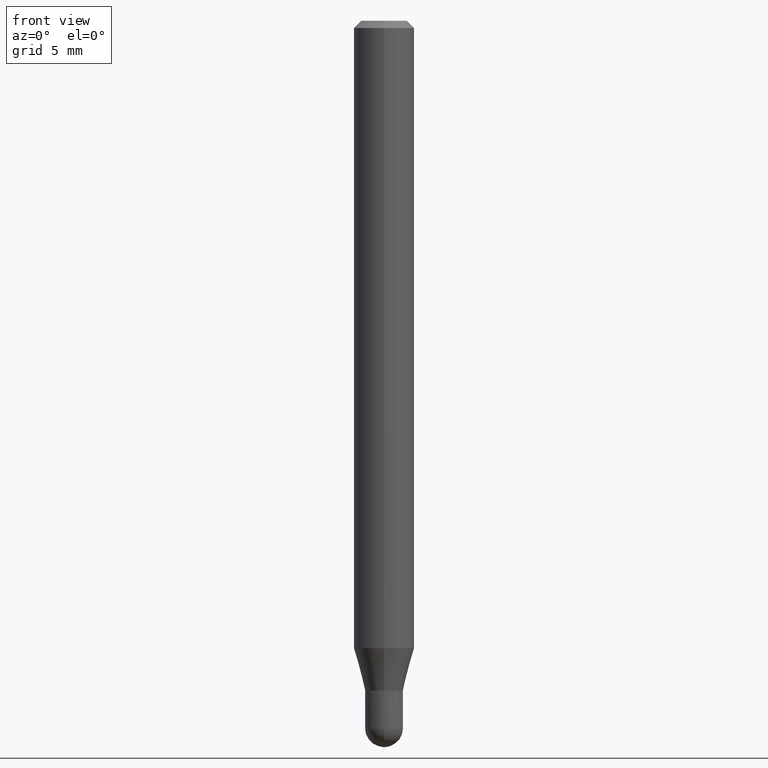
[diagram: clean part render]
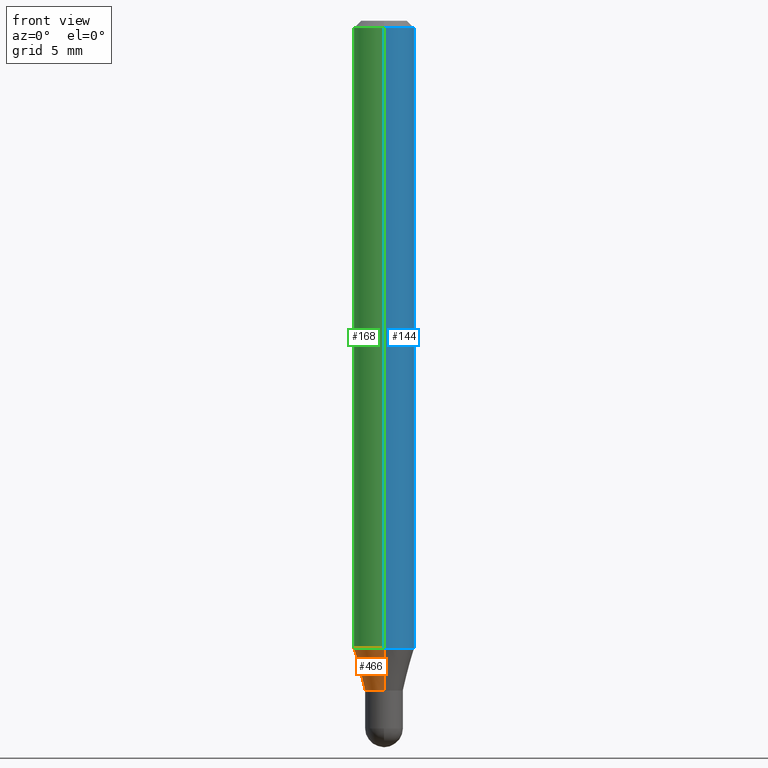
[diagram: same view with three faces highlighted in distinct colors, each labeled with its STEP entity id]
A machine part, front view with three faces highlighted in distinct colors.
Their STEP definitions:

[orange] entity #466 — the highlighted conical surface has half-angle 15 deg.
#1 = VERTEX_POINT ( 'NONE', #492 ) ;
#2 = FACE_OUTER_BOUND ( 'NONE', #42, .T. ) ;
#19 = CARTESIAN_POINT ( 'NONE',  ( 4.440892098500939734E-16, 0.06249999999999544115, -1.295296806022135261 ) ) ;
#24 = LINE ( 'NONE', #188, #328 ) ;
#42 = EDGE_LOOP ( 'NONE', ( #355, #118, #478, #99 ) ) ;
#44 = VERTEX_POINT ( 'NONE', #19 ) ;
#46 = AXIS2_PLACEMENT_3D ( 'NONE', #310, #63, #299 ) ;
#63 = DIRECTION ( 'NONE',  ( -2.445438854622252826E-29, 3.491524231185932081E-15, 1.000000000000000000 ) ) ;
#83 = DIRECTION ( 'NONE',  ( -1.807323732225382599E-15, -0.2588190451025256800, 0.9659258262890669799 ) ) ;
#99 = ORIENTED_EDGE ( 'NONE', *, *, #277, .F. ) ;
#118 = ORIENTED_EDGE ( 'NONE', *, *, #364, .T. ) ;
#120 = CARTESIAN_POINT ( 'NONE',  ( 3.382041935942576446E-29, -4.828778011730144635E-15, -1.383000000000000007 ) ) ;
#150 = AXIS2_PLACEMENT_3D ( 'NONE', #242, #401, #451 ) ;
#174 = VECTOR ( 'NONE', #83, 39.37007874015748143 ) ;
#176 = VERTEX_POINT ( 'NONE', #427 ) ;
#188 = CARTESIAN_POINT ( 'NONE',  ( 2.771116669464742257E-16, 0.03899999999999536476, -1.383000000000000007 ) ) ;
#194 = CARTESIAN_POINT ( 'NONE',  ( 3.606004383982843954E-16, 0.03899999999999536476, -1.383000000000000007 ) ) ;
#197 = LINE ( 'NONE', #399, #174 ) ;
#224 = AXIS2_PLACEMENT_3D ( 'NONE', #120, #329, #473 ) ;
#242 = CARTESIAN_POINT ( 'NONE',  ( 3.382041935942576446E-29, -4.828778011730144635E-15, -1.383000000000000007 ) ) ;
#272 = CONICAL_SURFACE ( 'NONE', #150, 0.03900000000000019423, 0.2617993877991580121 ) ;
#277 = EDGE_CURVE ( 'NONE', #44, #176, #414, .T. ) ;
#299 = DIRECTION ( 'NONE',  ( -6.982962677686265922E-15, -1.000000000000000000, 4.370956789862821150E-15 ) ) ;
#310 = CARTESIAN_POINT ( 'NONE',  ( 3.167569137714632415E-29, -4.522560184804029435E-15, -1.295296806022135039 ) ) ;
#317 = CIRCLE ( 'NONE', #224, 0.03900000000000019423 ) ;
#325 = VERTEX_POINT ( 'NONE', #194 ) ;
#326 = EDGE_CURVE ( 'NONE', #325, #44, #24, .T. ) ;
#328 = VECTOR ( 'NONE', #502, 39.37007874015748143 ) ;
#329 = DIRECTION ( 'NONE',  ( -2.445438854622252826E-29, 3.491524231185932081E-15, 1.000000000000000000 ) ) ;
#355 = ORIENTED_EDGE ( 'NONE', *, *, #326, .F. ) ;
#364 = EDGE_CURVE ( 'NONE', #325, #1, #317, .T. ) ;
#399 = CARTESIAN_POINT ( 'NONE',  ( -2.723355444297319263E-16, -0.03900000000000502370, -1.383000000000000007 ) ) ;
#401 = DIRECTION ( 'NONE',  ( -2.445438854622252826E-29, 3.491524231185932081E-15, 1.000000000000000000 ) ) ;
#408 = EDGE_CURVE ( 'NONE', #1, #176, #197, .T. ) ;
#414 = CIRCLE ( 'NONE', #46, 0.06250000000000000000 ) ;
#427 = CARTESIAN_POINT ( 'NONE',  ( -4.364351673553602629E-16, -0.06250000000000455191, -1.295296806022134817 ) ) ;
#451 = DIRECTION ( 'NONE',  ( -6.982962677686266711E-15, -1.000000000000000000, 0.000000000000000000 ) ) ;
#466 = ADVANCED_FACE ( 'NONE', ( #2 ), #272, .T. ) ;
#473 = DIRECTION ( 'NONE',  ( -6.982962677686266711E-15, -1.000000000000000000, 0.000000000000000000 ) ) ;
#478 = ORIENTED_EDGE ( 'NONE', *, *, #408, .T. ) ;
#492 = CARTESIAN_POINT ( 'NONE',  ( -2.723355444297319263E-16, -0.03900000000000502370, -1.383000000000000007 ) ) ;
#502 = DIRECTION ( 'NONE',  ( 1.839019923739653563E-15, 0.2588190451025324523, 0.9659258262890650926 ) ) ;

[blue] entity #144 — the highlighted cylindrical surface (edge-blend (fillet) strip) has radius 1.5875 mm, axis along (-0, 0, 1).
#17 = EDGE_CURVE ( 'NONE', #44, #340, #382, .T. ) ;
#19 = CARTESIAN_POINT ( 'NONE',  ( 4.440892098500939734E-16, 0.06249999999999544115, -1.295296806022135261 ) ) ;
#23 = DIRECTION ( 'NONE',  ( -6.982962677686265922E-15, -1.000000000000000000, 3.483106191921935554E-15 ) ) ;
#44 = VERTEX_POINT ( 'NONE', #19 ) ;
#45 = ORIENTED_EDGE ( 'NONE', *, *, #220, .T. ) ;
#56 = DIRECTION ( 'NONE',  ( -2.445438854622252826E-29, 3.491524231185932081E-15, 1.000000000000000000 ) ) ;
#62 = AXIS2_PLACEMENT_3D ( 'NONE', #266, #107, #222 ) ;
#72 = DIRECTION ( 'NONE',  ( -2.445438854622252826E-29, 3.491524231185932081E-15, 1.000000000000000000 ) ) ;
#87 = ORIENTED_EDGE ( 'NONE', *, *, #17, .T. ) ;
#90 = EDGE_CURVE ( 'NONE', #172, #340, #365, .T. ) ;
#107 = DIRECTION ( 'NONE',  ( -2.445438854622252826E-29, 3.491524231185932081E-15, 1.000000000000000000 ) ) ;
#112 = CARTESIAN_POINT ( 'NONE',  ( -4.364351673553912750E-16, -0.06250000000000005551, -0.01499999999999984852 ) ) ;
#114 = VECTOR ( 'NONE', #297, 39.37007874015748143 ) ;
#125 = ORIENTED_EDGE ( 'NONE', *, *, #129, .F. ) ;
#129 = EDGE_CURVE ( 'NONE', #176, #172, #381, .T. ) ;
#138 = CARTESIAN_POINT ( 'NONE',  ( -4.364351673553916201E-16, -0.06250000000000000000, 2.182202644491207551E-16 ) ) ;
#144 = ADVANCED_FACE ( 'NONE', ( #305 ), #462, .T. ) ;
#146 = CARTESIAN_POINT ( 'NONE',  ( 3.668158281933395686E-31, -5.237286346778921122E-17, -0.01500000000000006710 ) ) ;
#172 = VERTEX_POINT ( 'NONE', #112 ) ;
#176 = VERTEX_POINT ( 'NONE', #427 ) ;
#183 = AXIS2_PLACEMENT_3D ( 'NONE', #270, #72, #302 ) ;
#186 = DIRECTION ( 'NONE',  ( -2.445438854622252826E-29, 3.491524231185932081E-15, 1.000000000000000000 ) ) ;
#220 = EDGE_CURVE ( 'NONE', #176, #44, #398, .T. ) ;
#222 = DIRECTION ( 'NONE',  ( -6.982962677686265922E-15, -1.000000000000000000, 4.370956789862821150E-15 ) ) ;
#266 = CARTESIAN_POINT ( 'NONE',  ( 3.167569137714632415E-29, -4.522560184804029435E-15, -1.295296806022135039 ) ) ;
#270 = CARTESIAN_POINT ( 'NONE',  ( 0.000000000000000000, 0.000000000000000000, 0.000000000000000000 ) ) ;
#290 = AXIS2_PLACEMENT_3D ( 'NONE', #146, #56, #23 ) ;
#297 = DIRECTION ( 'NONE',  ( -2.445438854622252826E-29, 3.491524231185932081E-15, 1.000000000000000000 ) ) ;
#300 = CARTESIAN_POINT ( 'NONE',  ( 4.440892098500625669E-16, 0.06250000000000000000, -2.182202644491207551E-16 ) ) ;
#302 = DIRECTION ( 'NONE',  ( -6.982962677686265922E-15, -1.000000000000000000, 3.491524231185932081E-15 ) ) ;
#305 = FACE_OUTER_BOUND ( 'NONE', #505, .T. ) ;
#311 = ORIENTED_EDGE ( 'NONE', *, *, #90, .F. ) ;
#312 = CARTESIAN_POINT ( 'NONE',  ( 4.440892098500944664E-16, 0.06249999999999995143, -0.01500000000000028394 ) ) ;
#340 = VERTEX_POINT ( 'NONE', #312 ) ;
#365 = CIRCLE ( 'NONE', #290, 0.06250000000000000000 ) ;
#381 = LINE ( 'NONE', #138, #114 ) ;
#382 = LINE ( 'NONE', #300, #420 ) ;
#398 = CIRCLE ( 'NONE', #62, 0.06250000000000000000 ) ;
#420 = VECTOR ( 'NONE', #186, 39.37007874015748143 ) ;
#427 = CARTESIAN_POINT ( 'NONE',  ( -4.364351673553602629E-16, -0.06250000000000455191, -1.295296806022134817 ) ) ;
#462 = CYLINDRICAL_SURFACE ( 'NONE', #183, 0.06250000000000000000 ) ;
#505 = EDGE_LOOP ( 'NONE', ( #45, #87, #311, #125 ) ) ;

[green] entity #168 — the highlighted cylindrical surface (edge-blend (fillet) strip) has radius 1.5875 mm, axis along (-0, 0, 1).
#3 = ORIENTED_EDGE ( 'NONE', *, *, #65, .F. ) ;
#17 = EDGE_CURVE ( 'NONE', #44, #340, #382, .T. ) ;
#19 = CARTESIAN_POINT ( 'NONE',  ( 4.440892098500939734E-16, 0.06249999999999544115, -1.295296806022135261 ) ) ;
#44 = VERTEX_POINT ( 'NONE', #19 ) ;
#46 = AXIS2_PLACEMENT_3D ( 'NONE', #310, #63, #299 ) ;
#51 = EDGE_LOOP ( 'NONE', ( #285, #331, #128, #3 ) ) ;
#63 = DIRECTION ( 'NONE',  ( -2.445438854622252826E-29, 3.491524231185932081E-15, 1.000000000000000000 ) ) ;
#65 = EDGE_CURVE ( 'NONE', #340, #172, #94, .T. ) ;
#94 = CIRCLE ( 'NONE', #336, 0.06250000000000000000 ) ;
#112 = CARTESIAN_POINT ( 'NONE',  ( -4.364351673553912750E-16, -0.06250000000000005551, -0.01499999999999984852 ) ) ;
#114 = VECTOR ( 'NONE', #297, 39.37007874015748143 ) ;
#128 = ORIENTED_EDGE ( 'NONE', *, *, #129, .T. ) ;
#129 = EDGE_CURVE ( 'NONE', #176, #172, #381, .T. ) ;
#138 = CARTESIAN_POINT ( 'NONE',  ( -4.364351673553916201E-16, -0.06250000000000000000, 2.182202644491207551E-16 ) ) ;
#158 = AXIS2_PLACEMENT_3D ( 'NONE', #456, #421, #349 ) ;
#168 = ADVANCED_FACE ( 'NONE', ( #425 ), #352, .T. ) ;
#172 = VERTEX_POINT ( 'NONE', #112 ) ;
#176 = VERTEX_POINT ( 'NONE', #427 ) ;
#186 = DIRECTION ( 'NONE',  ( -2.445438854622252826E-29, 3.491524231185932081E-15, 1.000000000000000000 ) ) ;
#227 = CARTESIAN_POINT ( 'NONE',  ( 3.668158281933395686E-31, -5.237286346778921122E-17, -0.01500000000000006710 ) ) ;
#277 = EDGE_CURVE ( 'NONE', #44, #176, #414, .T. ) ;
#285 = ORIENTED_EDGE ( 'NONE', *, *, #17, .F. ) ;
#297 = DIRECTION ( 'NONE',  ( -2.445438854622252826E-29, 3.491524231185932081E-15, 1.000000000000000000 ) ) ;
#299 = DIRECTION ( 'NONE',  ( -6.982962677686265922E-15, -1.000000000000000000, 4.370956789862821150E-15 ) ) ;
#300 = CARTESIAN_POINT ( 'NONE',  ( 4.440892098500625669E-16, 0.06250000000000000000, -2.182202644491207551E-16 ) ) ;
#310 = CARTESIAN_POINT ( 'NONE',  ( 3.167569137714632415E-29, -4.522560184804029435E-15, -1.295296806022135039 ) ) ;
#312 = CARTESIAN_POINT ( 'NONE',  ( 4.440892098500944664E-16, 0.06249999999999995143, -0.01500000000000028394 ) ) ;
#331 = ORIENTED_EDGE ( 'NONE', *, *, #277, .T. ) ;
#336 = AXIS2_PLACEMENT_3D ( 'NONE', #227, #422, #388 ) ;
#340 = VERTEX_POINT ( 'NONE', #312 ) ;
#349 = DIRECTION ( 'NONE',  ( -6.982962677686265922E-15, -1.000000000000000000, 3.491524231185932081E-15 ) ) ;
#352 = CYLINDRICAL_SURFACE ( 'NONE', #158, 0.06250000000000000000 ) ;
#381 = LINE ( 'NONE', #138, #114 ) ;
#382 = LINE ( 'NONE', #300, #420 ) ;
#388 = DIRECTION ( 'NONE',  ( -6.982962677686265922E-15, -1.000000000000000000, 3.483106191921935554E-15 ) ) ;
#414 = CIRCLE ( 'NONE', #46, 0.06250000000000000000 ) ;
#420 = VECTOR ( 'NONE', #186, 39.37007874015748143 ) ;
#421 = DIRECTION ( 'NONE',  ( -2.445438854622252826E-29, 3.491524231185932081E-15, 1.000000000000000000 ) ) ;
#422 = DIRECTION ( 'NONE',  ( -2.445438854622252826E-29, 3.491524231185932081E-15, 1.000000000000000000 ) ) ;
#425 = FACE_OUTER_BOUND ( 'NONE', #51, .T. ) ;
#427 = CARTESIAN_POINT ( 'NONE',  ( -4.364351673553602629E-16, -0.06250000000000455191, -1.295296806022134817 ) ) ;
#456 = CARTESIAN_POINT ( 'NONE',  ( 0.000000000000000000, 0.000000000000000000, 0.000000000000000000 ) ) ;